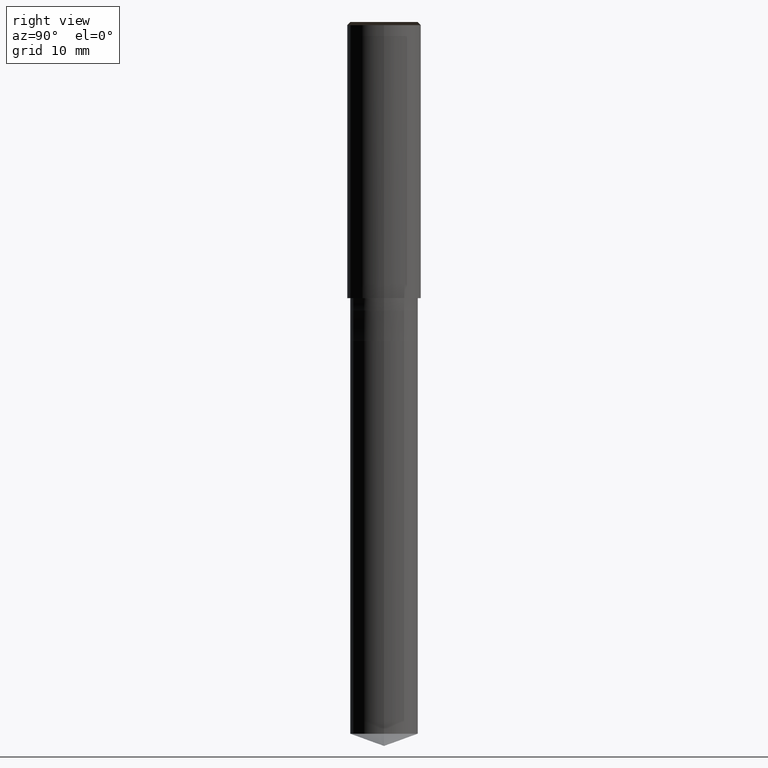
[diagram: clean part render]
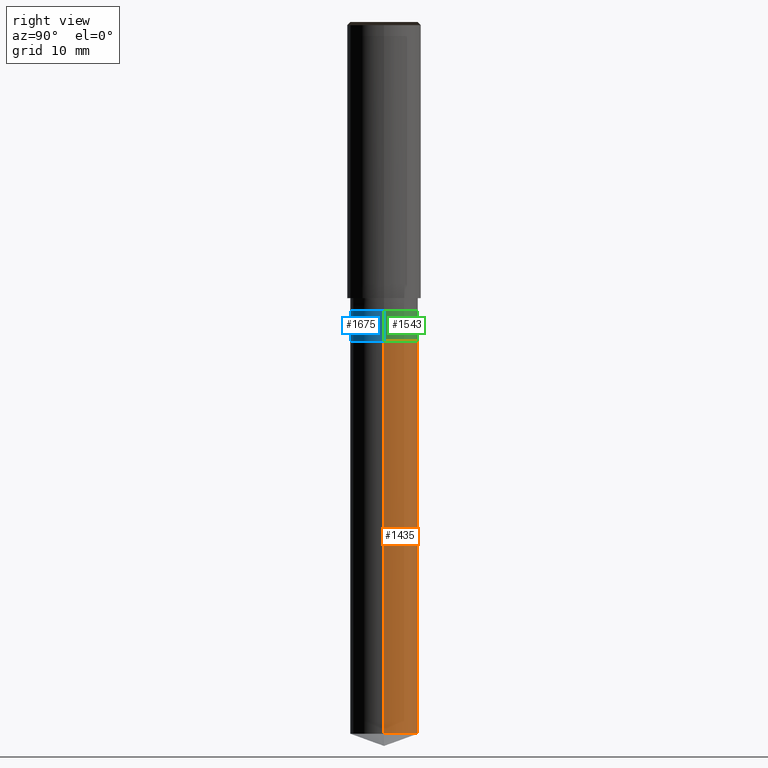
[diagram: same view with three faces highlighted in distinct colors, each labeled with its STEP entity id]
A machine part, right view with three faces highlighted in distinct colors.
Their STEP definitions:

[orange] entity #1435 — the highlighted face is a freeform B-spline surface patch.
#1337=CARTESIAN_POINT('',(5.5,0.0,-70.998163711536));
#1338=CARTESIAN_POINT('',(5.5,5.5,-70.998163711536));
#1339=CARTESIAN_POINT('',(0.0,5.5,-70.998163711536));
#1340=CARTESIAN_POINT('',(-5.5,5.5,-70.998163711536));
#1341=CARTESIAN_POINT('',(-5.5,0.0,-70.998163711536));
#1342=CARTESIAN_POINT('',(5.5,0.0,-7.0));
#1343=CARTESIAN_POINT('',(5.5,5.5,-7.0));
#1344=CARTESIAN_POINT('',(0.0,5.5,-7.0));
#1345=CARTESIAN_POINT('',(-5.5,5.5,-7.0));
#1346=CARTESIAN_POINT('',(-5.5,0.0,-7.0));
#1416=(
BOUNDED_SURFACE()
B_SPLINE_SURFACE(1,2,(
(#1337,#1338,#1339,#1340,#1341),
(#1342,#1343,#1344,#1345,#1346)
), .UNSPECIFIED.,.F.,.F.,.F.)
B_SPLINE_SURFACE_WITH_KNOTS((2,2),(3,2,3),(
0.0,1.0),(
0.0,0.5,1.0), .UNSPECIFIED.)
GEOMETRIC_REPRESENTATION_ITEM()
RATIONAL_B_SPLINE_SURFACE(((1.0,0.707106781187,1.0,0.707106781187,1.0),
(1.0,0.707106781187,1.0,0.707106781187,1.0)
))
REPRESENTATION_ITEM('')
SURFACE()
);
#1417=(
BOUNDED_CURVE()
B_SPLINE_CURVE(2,(#1341,#1340,#1339,#1338,#1337),.UNSPECIFIED.,.F.,.F.)
B_SPLINE_CURVE_WITH_KNOTS((3,2,3),
(0.0,0.5,1.0),.UNSPECIFIED.)
CURVE()
GEOMETRIC_REPRESENTATION_ITEM()
RATIONAL_B_SPLINE_CURVE((1.0,0.707106781187,1.0,0.707106781187,1.0))
REPRESENTATION_ITEM('')
);
#1418=(
BOUNDED_CURVE()
B_SPLINE_CURVE(1,(#1337,#1342),.UNSPECIFIED.,.F.,.F.)
B_SPLINE_CURVE_WITH_KNOTS((2,2),
(0.0,1.0),.UNSPECIFIED.)
CURVE()
GEOMETRIC_REPRESENTATION_ITEM()
RATIONAL_B_SPLINE_CURVE((1.0,1.0))
REPRESENTATION_ITEM('')
);
#1419=(
BOUNDED_CURVE()
B_SPLINE_CURVE(2,(#1342,#1343,#1344,#1345,#1346),.UNSPECIFIED.,.F.,.F.)
B_SPLINE_CURVE_WITH_KNOTS((3,2,3),
(0.0,0.5,1.0),.UNSPECIFIED.)
CURVE()
GEOMETRIC_REPRESENTATION_ITEM()
RATIONAL_B_SPLINE_CURVE((1.0,0.707106781187,1.0,0.707106781187,1.0))
REPRESENTATION_ITEM('')
);
#1420=(
BOUNDED_CURVE()
B_SPLINE_CURVE(1,(#1346,#1341),.UNSPECIFIED.,.F.,.F.)
B_SPLINE_CURVE_WITH_KNOTS((2,2),
(0.0,1.0),.UNSPECIFIED.)
CURVE()
GEOMETRIC_REPRESENTATION_ITEM()
RATIONAL_B_SPLINE_CURVE((1.0,1.0))
REPRESENTATION_ITEM('')
);
#1421=VERTEX_POINT('',#1337);
#1422=VERTEX_POINT('',#1341);
#1423=VERTEX_POINT('',#1342);
#1424=VERTEX_POINT('',#1346);
#1425=EDGE_CURVE('',#1422,#1421,#1417,.T.);
#1426=EDGE_CURVE('',#1421,#1423,#1418,.T.);
#1427=EDGE_CURVE('',#1423,#1424,#1419,.T.);
#1428=EDGE_CURVE('',#1424,#1422,#1420,.T.);
#1429=ORIENTED_EDGE('',*,*,#1425,.T.);
#1430=ORIENTED_EDGE('',*,*,#1426,.T.);
#1431=ORIENTED_EDGE('',*,*,#1427,.T.);
#1432=ORIENTED_EDGE('',*,*,#1428,.T.);
#1433=EDGE_LOOP('',(#1429,#1430,#1431,#1432));
#1434=FACE_OUTER_BOUND('',#1433,.T.);
#1435=ADVANCED_FACE('',(#1434),#1416,.T.);

[blue] entity #1675 — the highlighted face is a freeform B-spline surface patch.
#1342=CARTESIAN_POINT('',(5.5,0.0,-7.0));
#1346=CARTESIAN_POINT('',(-5.5,0.0,-7.0));
#1351=CARTESIAN_POINT('',(-5.5,-5.5,-7.0));
#1352=CARTESIAN_POINT('',(0.0,-5.5,-7.0));
#1353=CARTESIAN_POINT('',(5.5,-5.5,-7.0));
#1354=CARTESIAN_POINT('',(5.5,0.0,-2.0));
#1358=CARTESIAN_POINT('',(-5.5,0.0,-2.0));
#1380=CARTESIAN_POINT('',(-5.5,-5.5,-2.0));
#1381=CARTESIAN_POINT('',(0.0,-5.5,-2.0));
#1382=CARTESIAN_POINT('',(5.5,-5.5,-2.0));
#1656=(
BOUNDED_SURFACE()
B_SPLINE_SURFACE(1,2,(
(#1346,#1351,#1352,#1353,#1342),
(#1358,#1380,#1381,#1382,#1354)
), .UNSPECIFIED.,.F.,.F.,.F.)
B_SPLINE_SURFACE_WITH_KNOTS((2,2),(3,2,3),(
0.0,1.0),(
0.0,0.5,1.0), .UNSPECIFIED.)
GEOMETRIC_REPRESENTATION_ITEM()
RATIONAL_B_SPLINE_SURFACE(((1.0,0.707106781187,1.0,0.707106781187,1.0),
(1.0,0.707106781187,1.0,0.707106781187,1.0)
))
REPRESENTATION_ITEM('')
SURFACE()
);
#1657=(
BOUNDED_CURVE()
B_SPLINE_CURVE(2,(#1342,#1353,#1352,#1351,#1346),.UNSPECIFIED.,.F.,.F.)
B_SPLINE_CURVE_WITH_KNOTS((3,2,3),
(0.0,0.5,1.0),.UNSPECIFIED.)
CURVE()
GEOMETRIC_REPRESENTATION_ITEM()
RATIONAL_B_SPLINE_CURVE((1.0,0.707106781187,1.0,0.707106781187,1.0))
REPRESENTATION_ITEM('')
);
#1658=(
BOUNDED_CURVE()
B_SPLINE_CURVE(1,(#1346,#1358),.UNSPECIFIED.,.F.,.F.)
B_SPLINE_CURVE_WITH_KNOTS((2,2),
(0.0,1.0),.UNSPECIFIED.)
CURVE()
GEOMETRIC_REPRESENTATION_ITEM()
RATIONAL_B_SPLINE_CURVE((1.0,1.0))
REPRESENTATION_ITEM('')
);
#1659=(
BOUNDED_CURVE()
B_SPLINE_CURVE(2,(#1358,#1380,#1381,#1382,#1354),.UNSPECIFIED.,.F.,.F.)
B_SPLINE_CURVE_WITH_KNOTS((3,2,3),
(0.0,0.5,1.0),.UNSPECIFIED.)
CURVE()
GEOMETRIC_REPRESENTATION_ITEM()
RATIONAL_B_SPLINE_CURVE((1.0,0.707106781187,1.0,0.707106781187,1.0))
REPRESENTATION_ITEM('')
);
#1660=(
BOUNDED_CURVE()
B_SPLINE_CURVE(1,(#1354,#1342),.UNSPECIFIED.,.F.,.F.)
B_SPLINE_CURVE_WITH_KNOTS((2,2),
(0.0,1.0),.UNSPECIFIED.)
CURVE()
GEOMETRIC_REPRESENTATION_ITEM()
RATIONAL_B_SPLINE_CURVE((1.0,1.0))
REPRESENTATION_ITEM('')
);
#1661=VERTEX_POINT('',#1342);
#1662=VERTEX_POINT('',#1346);
#1663=VERTEX_POINT('',#1354);
#1664=VERTEX_POINT('',#1358);
#1665=EDGE_CURVE('',#1661,#1662,#1657,.T.);
#1666=EDGE_CURVE('',#1662,#1664,#1658,.T.);
#1667=EDGE_CURVE('',#1664,#1663,#1659,.T.);
#1668=EDGE_CURVE('',#1663,#1661,#1660,.T.);
#1669=ORIENTED_EDGE('',*,*,#1665,.T.);
#1670=ORIENTED_EDGE('',*,*,#1666,.T.);
#1671=ORIENTED_EDGE('',*,*,#1667,.T.);
#1672=ORIENTED_EDGE('',*,*,#1668,.T.);
#1673=EDGE_LOOP('',(#1669,#1670,#1671,#1672));
#1674=FACE_OUTER_BOUND('',#1673,.T.);
#1675=ADVANCED_FACE('',(#1674),#1656,.T.);

[green] entity #1543 — the highlighted face is a freeform B-spline surface patch.
#1342=CARTESIAN_POINT('',(5.5,0.0,-7.0));
#1343=CARTESIAN_POINT('',(5.5,5.5,-7.0));
#1344=CARTESIAN_POINT('',(0.0,5.5,-7.0));
#1345=CARTESIAN_POINT('',(-5.5,5.5,-7.0));
#1346=CARTESIAN_POINT('',(-5.5,0.0,-7.0));
#1354=CARTESIAN_POINT('',(5.5,0.0,-2.0));
#1355=CARTESIAN_POINT('',(5.5,5.5,-2.0));
#1356=CARTESIAN_POINT('',(0.0,5.5,-2.0));
#1357=CARTESIAN_POINT('',(-5.5,5.5,-2.0));
#1358=CARTESIAN_POINT('',(-5.5,0.0,-2.0));
#1524=(
BOUNDED_SURFACE()
B_SPLINE_SURFACE(1,2,(
(#1342,#1343,#1344,#1345,#1346),
(#1354,#1355,#1356,#1357,#1358)
), .UNSPECIFIED.,.F.,.F.,.F.)
B_SPLINE_SURFACE_WITH_KNOTS((2,2),(3,2,3),(
0.0,1.0),(
0.0,0.5,1.0), .UNSPECIFIED.)
GEOMETRIC_REPRESENTATION_ITEM()
RATIONAL_B_SPLINE_SURFACE(((1.0,0.707106781187,1.0,0.707106781187,1.0),
(1.0,0.707106781187,1.0,0.707106781187,1.0)
))
REPRESENTATION_ITEM('')
SURFACE()
);
#1525=(
BOUNDED_CURVE()
B_SPLINE_CURVE(2,(#1346,#1345,#1344,#1343,#1342),.UNSPECIFIED.,.F.,.F.)
B_SPLINE_CURVE_WITH_KNOTS((3,2,3),
(0.0,0.5,1.0),.UNSPECIFIED.)
CURVE()
GEOMETRIC_REPRESENTATION_ITEM()
RATIONAL_B_SPLINE_CURVE((1.0,0.707106781187,1.0,0.707106781187,1.0))
REPRESENTATION_ITEM('')
);
#1526=(
BOUNDED_CURVE()
B_SPLINE_CURVE(1,(#1342,#1354),.UNSPECIFIED.,.F.,.F.)
B_SPLINE_CURVE_WITH_KNOTS((2,2),
(0.0,1.0),.UNSPECIFIED.)
CURVE()
GEOMETRIC_REPRESENTATION_ITEM()
RATIONAL_B_SPLINE_CURVE((1.0,1.0))
REPRESENTATION_ITEM('')
);
#1527=(
BOUNDED_CURVE()
B_SPLINE_CURVE(2,(#1354,#1355,#1356,#1357,#1358),.UNSPECIFIED.,.F.,.F.)
B_SPLINE_CURVE_WITH_KNOTS((3,2,3),
(0.0,0.5,1.0),.UNSPECIFIED.)
CURVE()
GEOMETRIC_REPRESENTATION_ITEM()
RATIONAL_B_SPLINE_CURVE((1.0,0.707106781187,1.0,0.707106781187,1.0))
REPRESENTATION_ITEM('')
);
#1528=(
BOUNDED_CURVE()
B_SPLINE_CURVE(1,(#1358,#1346),.UNSPECIFIED.,.F.,.F.)
B_SPLINE_CURVE_WITH_KNOTS((2,2),
(0.0,1.0),.UNSPECIFIED.)
CURVE()
GEOMETRIC_REPRESENTATION_ITEM()
RATIONAL_B_SPLINE_CURVE((1.0,1.0))
REPRESENTATION_ITEM('')
);
#1529=VERTEX_POINT('',#1342);
#1530=VERTEX_POINT('',#1346);
#1531=VERTEX_POINT('',#1354);
#1532=VERTEX_POINT('',#1358);
#1533=EDGE_CURVE('',#1530,#1529,#1525,.T.);
#1534=EDGE_CURVE('',#1529,#1531,#1526,.T.);
#1535=EDGE_CURVE('',#1531,#1532,#1527,.T.);
#1536=EDGE_CURVE('',#1532,#1530,#1528,.T.);
#1537=ORIENTED_EDGE('',*,*,#1533,.T.);
#1538=ORIENTED_EDGE('',*,*,#1534,.T.);
#1539=ORIENTED_EDGE('',*,*,#1535,.T.);
#1540=ORIENTED_EDGE('',*,*,#1536,.T.);
#1541=EDGE_LOOP('',(#1537,#1538,#1539,#1540));
#1542=FACE_OUTER_BOUND('',#1541,.T.);
#1543=ADVANCED_FACE('',(#1542),#1524,.T.);